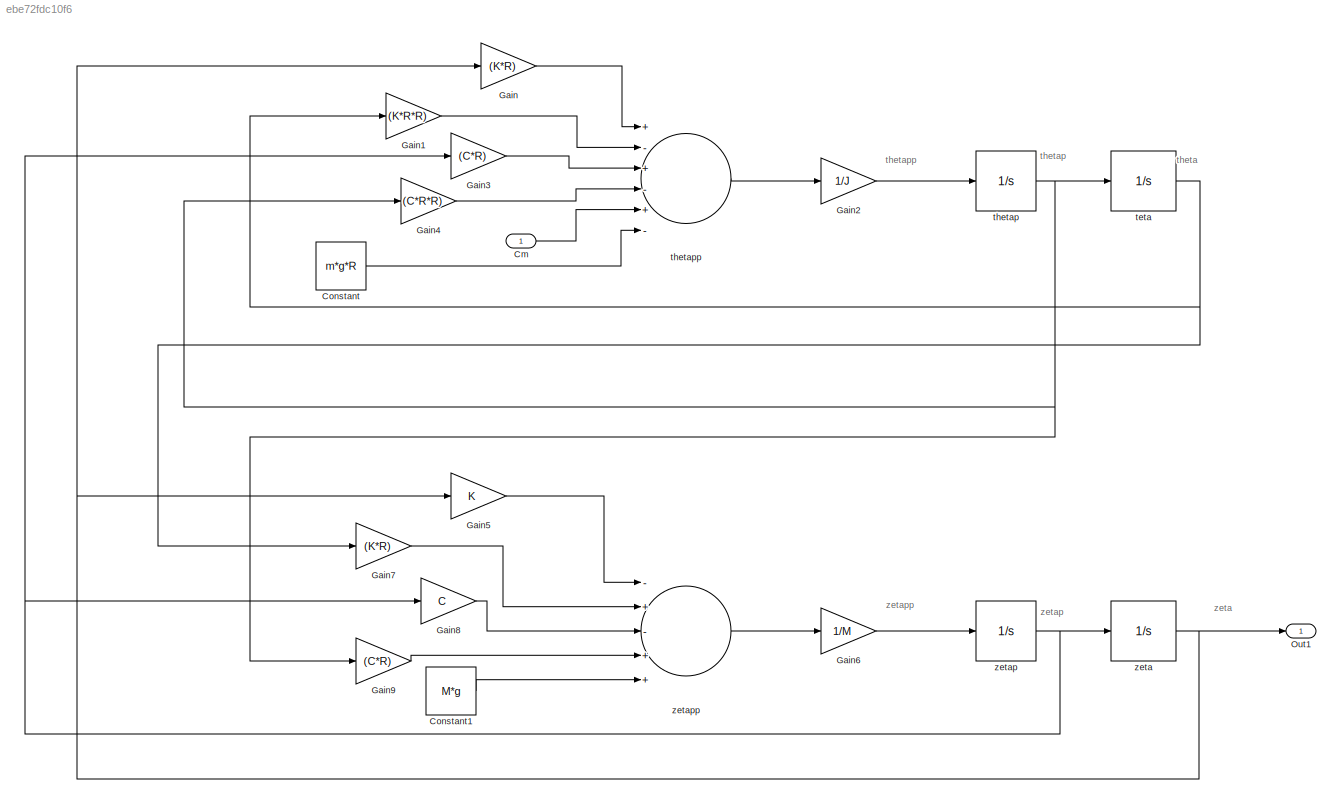
MODEL slx_ebe72fdc10f6
KIND model
BLOCK [Inport] Cm
  IconDisplay = Port number
BLOCK [Constant] Constant
  Value = m*g*R
BLOCK [Constant] Constant1
  Value = M*g
BLOCK [Gain] Gain
  Gain = (K*R)
  OutDataTypeStr = Inherit: Inherit via internal rule
  ParamDataTypeStr = Inherit: Inherit via internal rule
  SaturateOnIntegerOverflow = off
BLOCK [Gain] Gain1
  Gain = (K*R*R)
  OutDataTypeStr = Inherit: Inherit via internal rule
  ParamDataTypeStr = Inherit: Inherit via internal rule
  SaturateOnIntegerOverflow = off
BLOCK [Gain] Gain2
  Gain = 1/J
  OutDataTypeStr = Inherit: Inherit via internal rule
  ParamDataTypeStr = Inherit: Inherit via internal rule
  SaturateOnIntegerOverflow = off
BLOCK [Gain] Gain3
  Gain = (C*R)
  OutDataTypeStr = Inherit: Inherit via internal rule
  ParamDataTypeStr = Inherit: Inherit via internal rule
  SaturateOnIntegerOverflow = off
BLOCK [Gain] Gain4
  Gain = (C*R*R)
  OutDataTypeStr = Inherit: Inherit via internal rule
  ParamDataTypeStr = Inherit: Inherit via internal rule
  SaturateOnIntegerOverflow = off
BLOCK [Gain] Gain5
  Gain = K
  OutDataTypeStr = Inherit: Inherit via internal rule
  ParamDataTypeStr = Inherit: Inherit via internal rule
  SaturateOnIntegerOverflow = off
BLOCK [Gain] Gain6
  Gain = 1/M
  OutDataTypeStr = Inherit: Inherit via internal rule
  ParamDataTypeStr = Inherit: Inherit via internal rule
  SaturateOnIntegerOverflow = off
BLOCK [Gain] Gain7
  Gain = (K*R)
  OutDataTypeStr = Inherit: Inherit via internal rule
  ParamDataTypeStr = Inherit: Inherit via internal rule
  SaturateOnIntegerOverflow = off
BLOCK [Gain] Gain8
  Gain = C
  OutDataTypeStr = Inherit: Inherit via internal rule
  ParamDataTypeStr = Inherit: Inherit via internal rule
  SaturateOnIntegerOverflow = off
BLOCK [Gain] Gain9
  Gain = (C*R)
  OutDataTypeStr = Inherit: Inherit via internal rule
  ParamDataTypeStr = Inherit: Inherit via internal rule
  SaturateOnIntegerOverflow = off
BLOCK [Outport] Out1
  IconDisplay = Port number
BLOCK [Integrator] teta
  Ports = [1, 1]
BLOCK [Integrator] thetap
  Ports = [1, 1]
BLOCK [Sum] thetapp
  InputSameDT = off
  Inputs = +-+-+-
  OutDataTypeStr = Inherit: Inherit via internal rule
  Ports = [6, 1]
  SaturateOnIntegerOverflow = off
BLOCK [Integrator] zeta
  Ports = [1, 1]
BLOCK [Integrator] zetap
  Ports = [1, 1]
BLOCK [Sum] zetapp
  InputSameDT = off
  Inputs = -+-++
  OutDataTypeStr = Inherit: Inherit via internal rule
  Ports = [5, 1]
  SaturateOnIntegerOverflow = off
ANNOTATION (root): theta
ANNOTATION (root): thetap
ANNOTATION (root): thetapp
ANNOTATION (root): zeta
ANNOTATION (root): zetap
ANNOTATION (root): zetapp
LINE Cm:1 -> thetapp:5
LINE Constant1:1 -> zetapp:5
LINE Constant:1 -> thetapp:6
LINE Gain1:1 -> thetapp:2
LINE Gain2:1 -> thetap:1
LINE Gain3:1 -> thetapp:3
LINE Gain4:1 -> thetapp:4
LINE Gain5:1 -> zetapp:1
LINE Gain6:1 -> zetap:1
LINE Gain7:1 -> zetapp:2
LINE Gain8:1 -> zetapp:3
LINE Gain9:1 -> zetapp:4
LINE Gain:1 -> thetapp:1
NET teta:1 -> Gain1:1, Gain7:1
NET thetap:1 -> Gain4:1, Gain9:1, teta:1
LINE thetapp:1 -> Gain2:1
NET zeta:1 -> Gain5:1, Gain:1, Out1:1
NET zetap:1 -> Gain3:1, Gain8:1, zeta:1
LINE zetapp:1 -> Gain6:1
note: NET lines group one-source signal fan-out (src -> all destinations, sorted); 1:1 wires keep LINE
